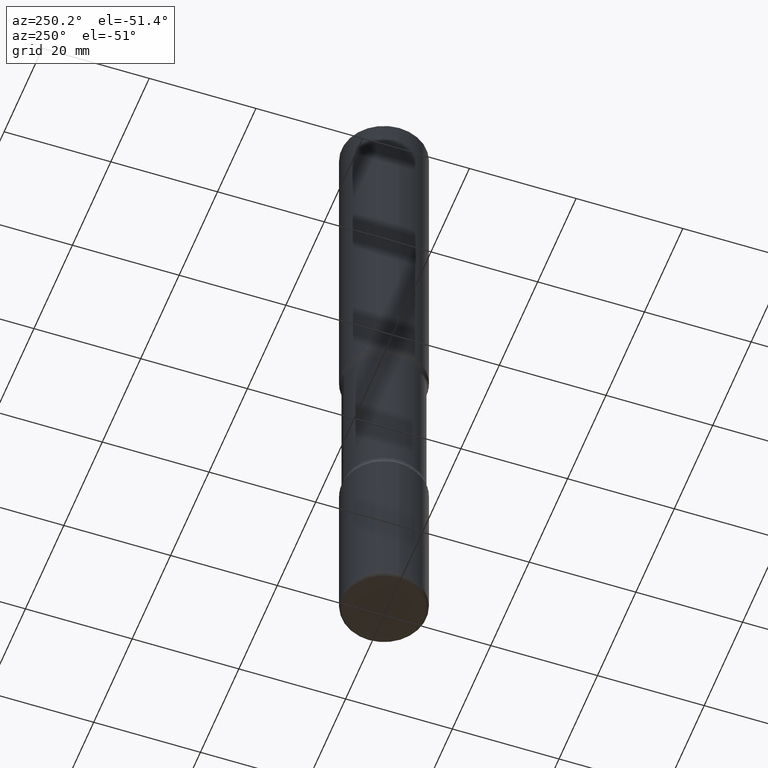
[diagram: clean part render]
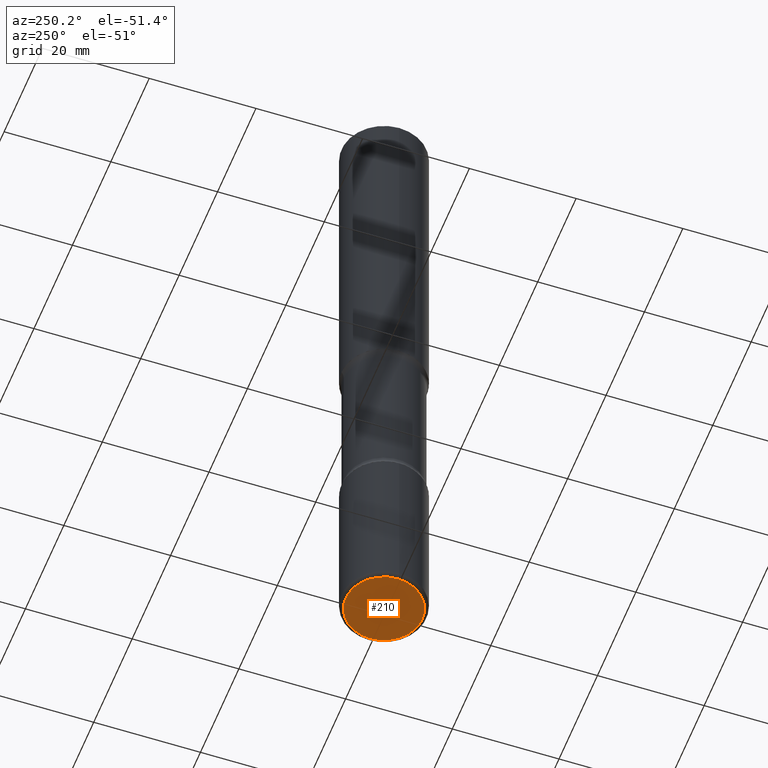
[diagram: same view with one face highlighted and labeled with its STEP entity id]
A machine part, auxiliary view. The second image highlights one B-rep face of the part: STEP entity #210.
In plain terms, the highlighted planar face has unit normal (0, -0, -1).
Its self-contained STEP definition (entity closure, byte-faithful):
#18 = EDGE_LOOP ( 'NONE', ( #512, #192 ) ) ;
#53 = PLANE ( 'NONE',  #491 ) ;
#64 = CARTESIAN_POINT ( 'NONE',  ( -0.2825000000000003064, -1.529116983524678288E-14, -5.000000000000000888 ) ) ;
#69 = DIRECTION ( 'NONE',  ( -2.445468806185136597E-29, 3.491481338843145583E-15, 1.000000000000000000 ) ) ;
#95 = CARTESIAN_POINT ( 'NONE',  ( 1.222734403092568523E-28, -1.745740669421573304E-14, -5.000000000000000888 ) ) ;
#114 = VERTEX_POINT ( 'NONE', #337 ) ;
#139 = DIRECTION ( 'NONE',  ( -1.000000000000000000, 6.982962677686265922E-15, -4.876176775795935793E-29 ) ) ;
#159 = CIRCLE ( 'NONE', #480, 0.2825000000000003064 ) ;
#185 = DIRECTION ( 'NONE',  ( -2.445468806185136597E-29, 3.491481338843145583E-15, 1.000000000000000000 ) ) ;
#192 = ORIENTED_EDGE ( 'NONE', *, *, #207, .F. ) ;
#199 = AXIS2_PLACEMENT_3D ( 'NONE', #95, #185, #482 ) ;
#207 = EDGE_CURVE ( 'NONE', #396, #114, #346, .T. ) ;
#210 = ADVANCED_FACE ( 'NONE', ( #394 ), #53, .T. ) ;
#337 = CARTESIAN_POINT ( 'NONE',  ( 0.2825000000000003064, -1.943009365066210307E-14, -5.000000000000000888 ) ) ;
#346 = CIRCLE ( 'NONE', #199, 0.2825000000000003064 ) ;
#358 = DIRECTION ( 'NONE',  ( 2.438088387897960049E-29, -3.491481338843145188E-15, -1.000000000000000000 ) ) ;
#394 = FACE_OUTER_BOUND ( 'NONE', #18, .T. ) ;
#396 = VERTEX_POINT ( 'NONE', #64 ) ;
#429 = EDGE_CURVE ( 'NONE', #114, #396, #159, .T. ) ;
#480 = AXIS2_PLACEMENT_3D ( 'NONE', #495, #69, #534 ) ;
#482 = DIRECTION ( 'NONE',  ( 1.000000000000000000, -6.982962677686261977E-15, 0.000000000000000000 ) ) ;
#487 = CARTESIAN_POINT ( 'NONE',  ( -1.278066645796191221E-29, -3.679792346352024126E-14, -5.000000000000000000 ) ) ;
#491 = AXIS2_PLACEMENT_3D ( 'NONE', #487, #358, #139 ) ;
#495 = CARTESIAN_POINT ( 'NONE',  ( 1.222734403092568523E-28, -1.745740669421573304E-14, -5.000000000000000888 ) ) ;
#512 = ORIENTED_EDGE ( 'NONE', *, *, #429, .F. ) ;
#534 = DIRECTION ( 'NONE',  ( 1.000000000000000000, -6.982962677686261977E-15, 0.000000000000000000 ) ) ;